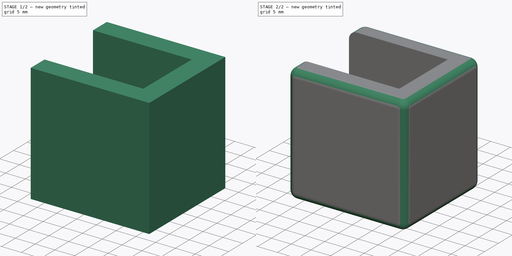
[diagram: build sequence overview — one tinted view per stage of 2, left to right]
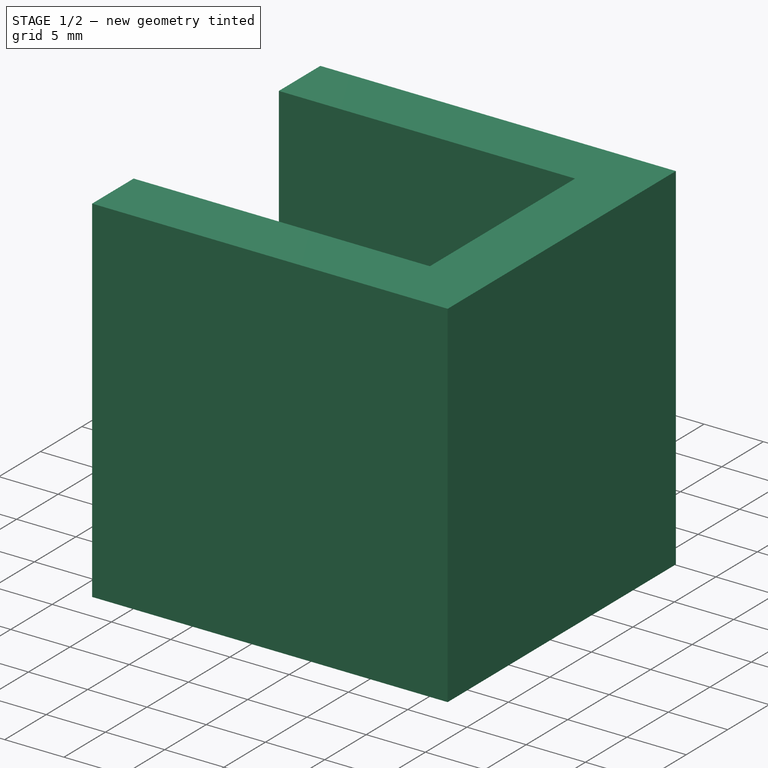
[diagram: stage 1 of 2 — iso view after this stage's code; geometry added in this stage tinted green]
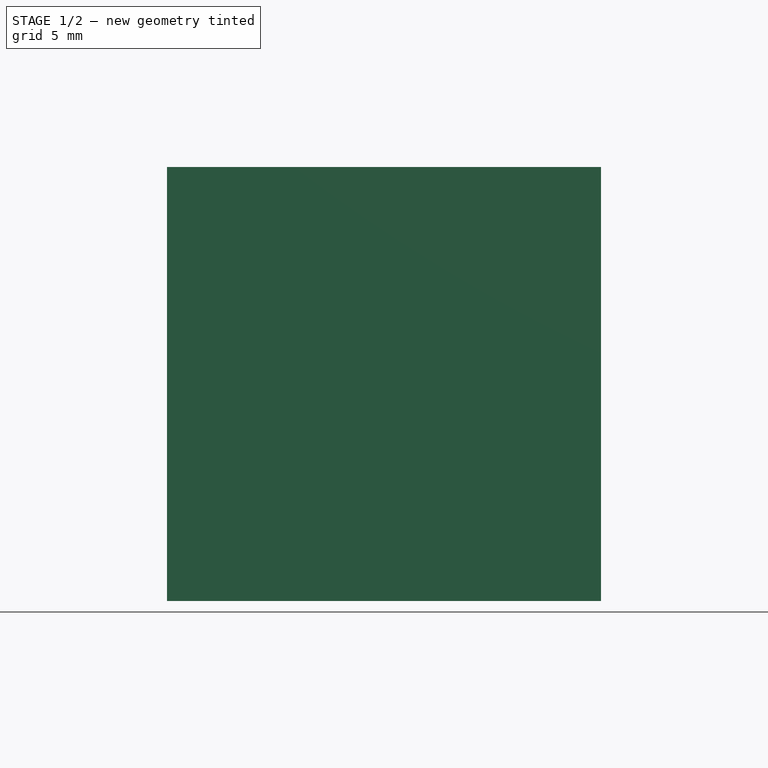
[diagram: stage 1 of 2 — front view after this stage's code; geometry added in this stage tinted green]
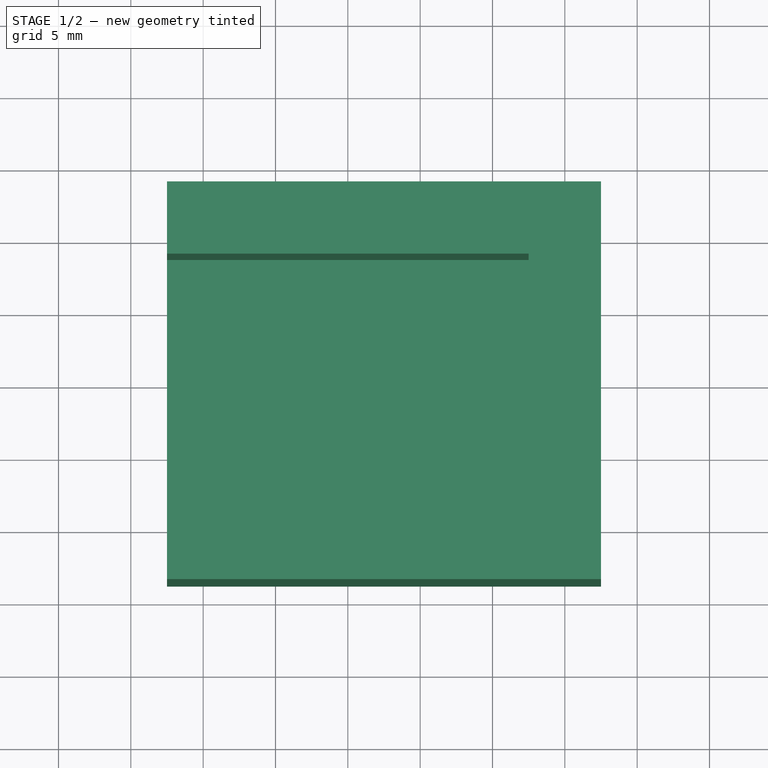
[diagram: stage 1 of 2 — top view after this stage's code; geometry added in this stage tinted green]
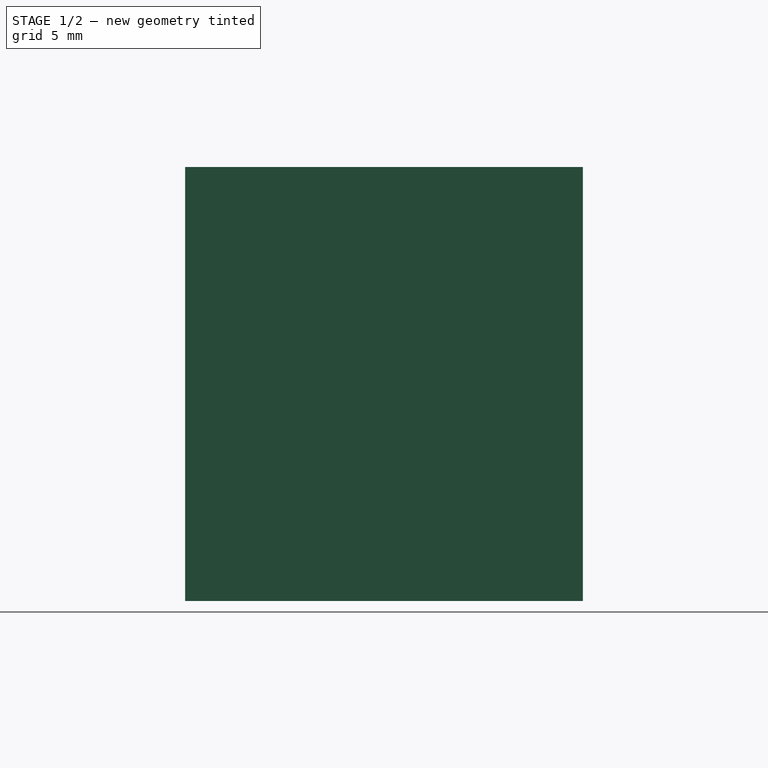
[diagram: stage 1 of 2 — right view after this stage's code; geometry added in this stage tinted green]
FCSTD DOCUMENT  (FreeCAD 1.0R39109 (Git))
Label: i_was_pad_bumper
License: All rights reserved
LicenseURL: https://en.wikipedia.org/wiki/All_rights_reserved
objects: Sketcher::SketchObject×2, PartDesign::Pad×2, PartDesign::Fillet×1, PartDesign::Body×1
note: 14 computed .brp shape members not serialized (recipe doc carries the construction recipe); baked Part::Feature solids carry a one-line shape summary decoded from their .brp

FEATURE [Sketcher::SketchObject] Sketch  label="Sketch_body"
  ArcFitTolerance = 1e-06
  AttachmentSupport = -> [XY_Plane]
  FullyConstrained = true
  MakeInternals = false
  MapMode = 5
  sketch-geometry (10):
    g0: LineSegment [constr] StartX=-12.5 StartY=-8.75 StartZ=0 EndX=12.5 EndY=-8.75 EndZ=0
    g1: LineSegment [constr] StartX=12.5 StartY=-8.75 StartZ=0 EndX=12.5 EndY=8.75 EndZ=0
    g2: LineSegment [constr] StartX=12.5 StartY=8.75 StartZ=0 EndX=-12.5 EndY=8.75 EndZ=0
    g3: LineSegment [constr] StartX=-12.5 StartY=8.75 StartZ=0 EndX=-12.5 EndY=-8.75 EndZ=0
    g4: GeomPoint [constr] X=0 Y=0 Z=0
    g5: LineSegment StartX=-12.5 StartY=-13.75 StartZ=0 EndX=17.5 EndY=-13.75 EndZ=0
    g6: LineSegment StartX=17.5 StartY=-13.75 StartZ=0 EndX=17.5 EndY=13.75 EndZ=0
    g7: LineSegment StartX=17.5 StartY=13.75 StartZ=0 EndX=-12.5 EndY=13.75 EndZ=0
    g8: LineSegment StartX=-12.5 StartY=13.75 StartZ=0 EndX=-12.5 EndY=-13.75 EndZ=0
    g9: LineSegment [constr] StartX=-12.5 StartY=1e-16 StartZ=0 EndX=17.5 EndY=-1e-16 EndZ=0
  constraints (25):
    c: Coincident(g0,g1)
    c: Coincident(g1,g2)
    c: Coincident(g2,g3)
    c: Coincident(g3,g0)
    c: Horizontal(g0)
    c: Horizontal(g2)
    c: Vertical(g1)
    c: Vertical(g3)
    c: Symmetric(g2,g0,g4)
    c: Distance(g1,g3) = 25
    c: Distance(g0,g2) = 17.5
    c: Coincident(g4,g-1)
    c: Coincident(g5,g6)
    c: Coincident(g6,g7)
    c: Coincident(g7,g8)
    c: Coincident(g8,g5)
    c: Horizontal(g5)
    c: Horizontal(g7)
    c: Vertical(g6)
    c: Distance(g6,g8) = 30
    c: Distance(g5,g7) = 27.5
    c: Tangent(g8,g3)
    c: Symmetric(g8,g8,g9)
    c: Symmetric(g6,g6,g9)
    c: PointOnObject(g4,g9)
FEATURE [PartDesign::Pad] Pad  label="body"
  Direction = (0,0,1)
  Length = 5
  Length2 = 10
  Profile = -> Sketch
  ReferenceAxis = -> Sketch [N_Axis]
  Refine = true
  Reversed = true
  Suppressed = false
  Type = 0
FEATURE [Sketcher::SketchObject] Sketch001  label="Sketch_sidewall"
  ArcFitTolerance = 1e-06
  AttachmentSupport = -> [XY_Plane]
  FullyConstrained = true
  MakeInternals = false
  MapMode = 5
  sketch-geometry (13):
    g0: LineSegment [constr] StartX=-12.5 StartY=-8.75 StartZ=0 EndX=12.5 EndY=-8.75 EndZ=0
    g1: LineSegment [constr] StartX=12.5 StartY=-8.75 StartZ=0 EndX=12.5 EndY=8.75 EndZ=0
    g2: LineSegment [constr] StartX=12.5 StartY=8.75 StartZ=0 EndX=-12.5 EndY=8.75 EndZ=0
    g3: LineSegment [constr] StartX=-12.5 StartY=8.75 StartZ=0 EndX=-12.5 EndY=-8.75 EndZ=0
    g4: GeomPoint [constr] X=0 Y=0 Z=0
    g5: LineSegment StartX=-12.5 StartY=8.75 StartZ=0 EndX=12.5 EndY=8.75 EndZ=0
    g6: LineSegment StartX=-12.5 StartY=8.75 StartZ=0 EndX=-12.5 EndY=13.75 EndZ=0
    g7: LineSegment StartX=-12.5 StartY=13.75 StartZ=0 EndX=17.5 EndY=13.75 EndZ=0
    g8: LineSegment StartX=-12.5 StartY=-8.75 StartZ=0 EndX=12.5 EndY=-8.75 EndZ=0
    g9: LineSegment StartX=-12.5 StartY=-8.75 StartZ=0 EndX=-12.5 EndY=-13.75 EndZ=0
    g10: LineSegment StartX=-12.5 StartY=-13.75 StartZ=0 EndX=17.5 EndY=-13.75 EndZ=0
    g11: LineSegment StartX=12.5 StartY=8.75 StartZ=0 EndX=12.5 EndY=-8.75 EndZ=0
    g12: LineSegment StartX=17.5 StartY=13.75 StartZ=0 EndX=17.5 EndY=-13.75 EndZ=0
  constraints (30):
    c: Coincident(g0,g1)
    c: Coincident(g1,g2)
    c: Coincident(g2,g3)
    c: Coincident(g3,g0)
    c: Horizontal(g0)
    c: Horizontal(g2)
    c: Vertical(g1)
    c: Vertical(g3)
    c: Symmetric(g2,g0,g4)
    c: Distance(g1,g3) = 25
    c: Distance(g0,g2) = 17.5
    c: Coincident(g4,g-1)
    c: Coincident(g5,g2)
    c: Coincident(g5,g1)
    c: Distance(g6) = 5
    c: Coincident(g6,g2)
    c: Vertical(g6)
    c: Distance(g7) = 30
    c: Coincident(g7,g6)
    c: Horizontal(g7)
    c: Symmetric(g5,g8,g-1)
    c: Symmetric(g5,g8,g-1)
    c: Symmetric(g6,g9,g-1)
    c: Symmetric(g6,g9,g-1)
    c: Symmetric(g7,g10,g-1)
    c: Symmetric(g7,g10,g-1)
    c: Coincident(g11,g1)
    c: Coincident(g11,g8)
    c: Coincident(g12,g7)
    c: Coincident(g12,g10)
FEATURE [PartDesign::Pad] Pad001  label="sidewall"
  BaseFeature = -> Pad
  Direction = (0,0,1)
  Length = 25
  Length2 = 10
  Profile = -> Sketch001
  ReferenceAxis = -> Sketch001 [N_Axis]
  Refine = true
  Suppressed = false
  Type = 0
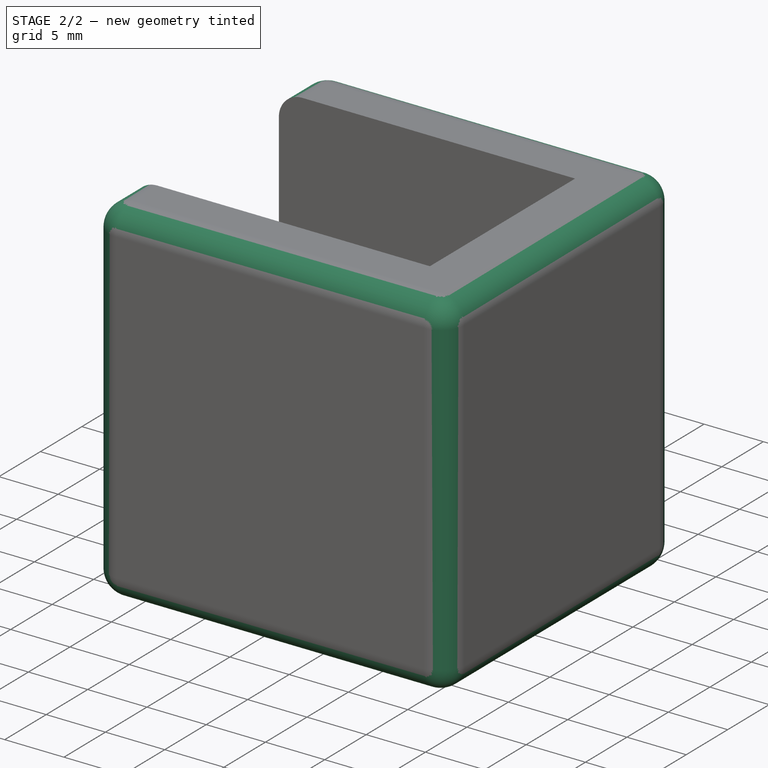
[diagram: stage 2 of 2 — iso view after this stage's code; geometry added in this stage tinted green]
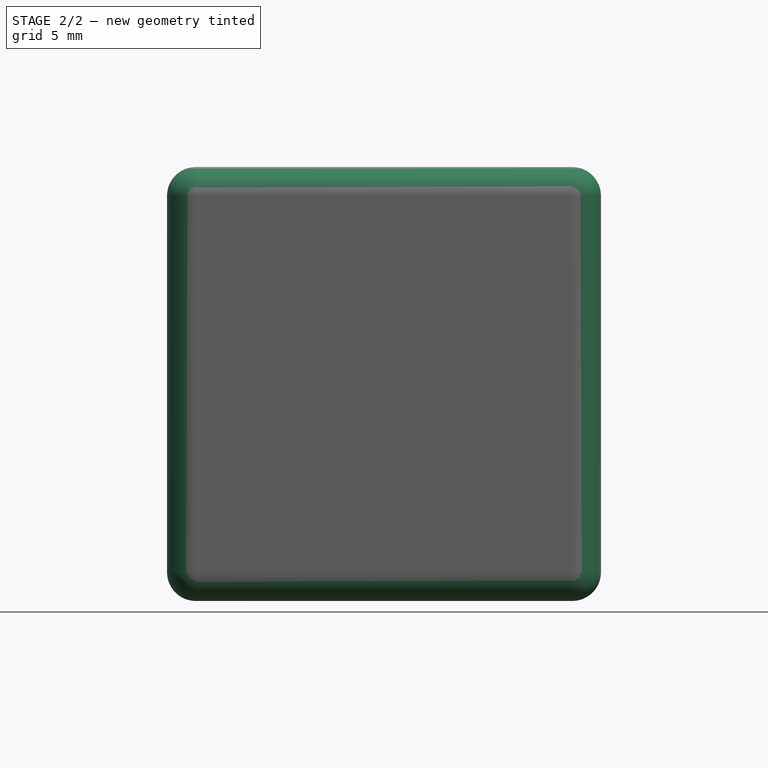
[diagram: stage 2 of 2 — front view after this stage's code; geometry added in this stage tinted green]
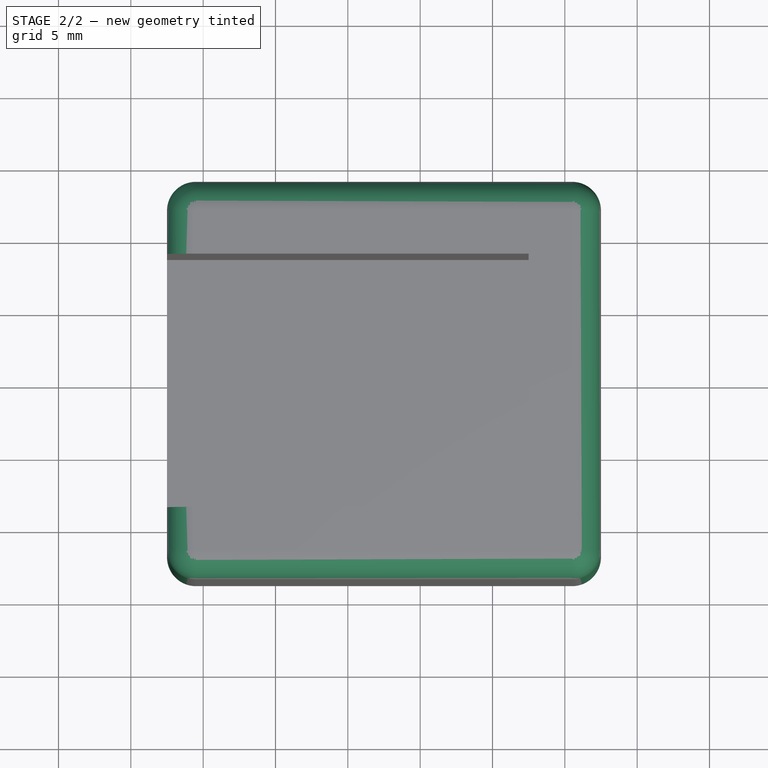
[diagram: stage 2 of 2 — top view after this stage's code; geometry added in this stage tinted green]
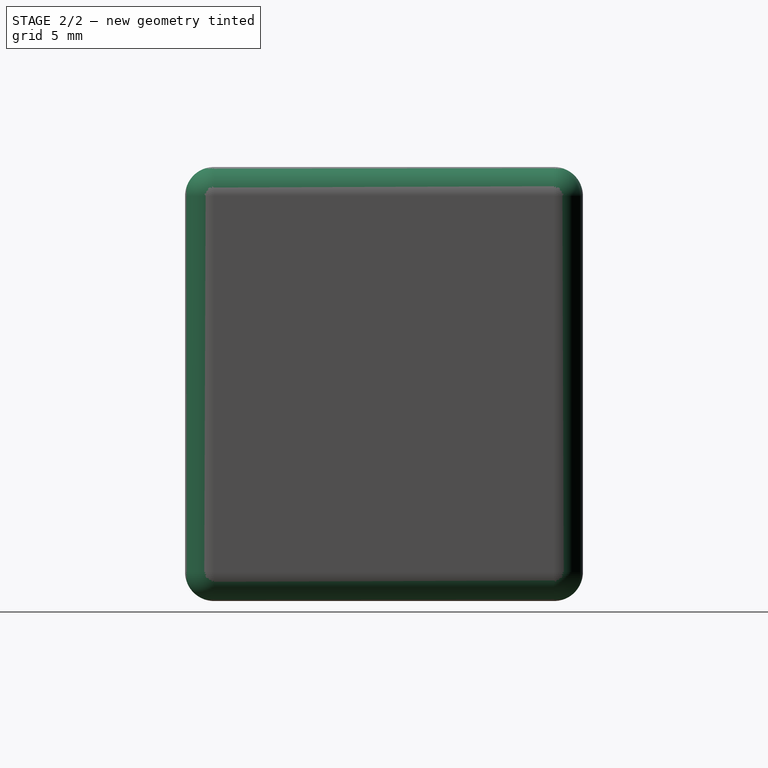
[diagram: stage 2 of 2 — right view after this stage's code; geometry added in this stage tinted green]
FEATURE [PartDesign::Fillet] Fillet  label="Fillet_final"
  Base = -> Pad001 [Edge20,Edge6,Edge15,Edge24,Edge5,Edge2,Edge3,Edge23,Edge4,Edge7,Edge1,Edge19,Edge16]
  BaseFeature = -> Pad001
  Radius = 2
  Refine = true
  SupportTransform = false
  Suppressed = false
  UseAllEdges = false
FEATURE [PartDesign::Body] Body  label="몸통"
  AllowCompound = false
  Group = -> [Sketch,Pad,Sketch001,Pad001,Fillet]
  Origin = -> Origin
  Tip = -> Fillet
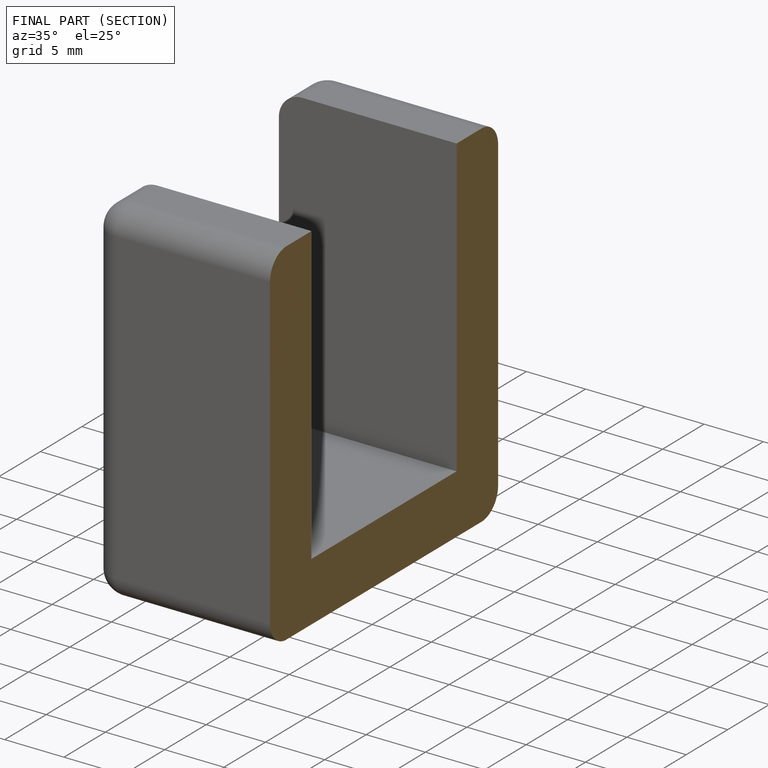
[diagram: finished part — half-section view (interior)]
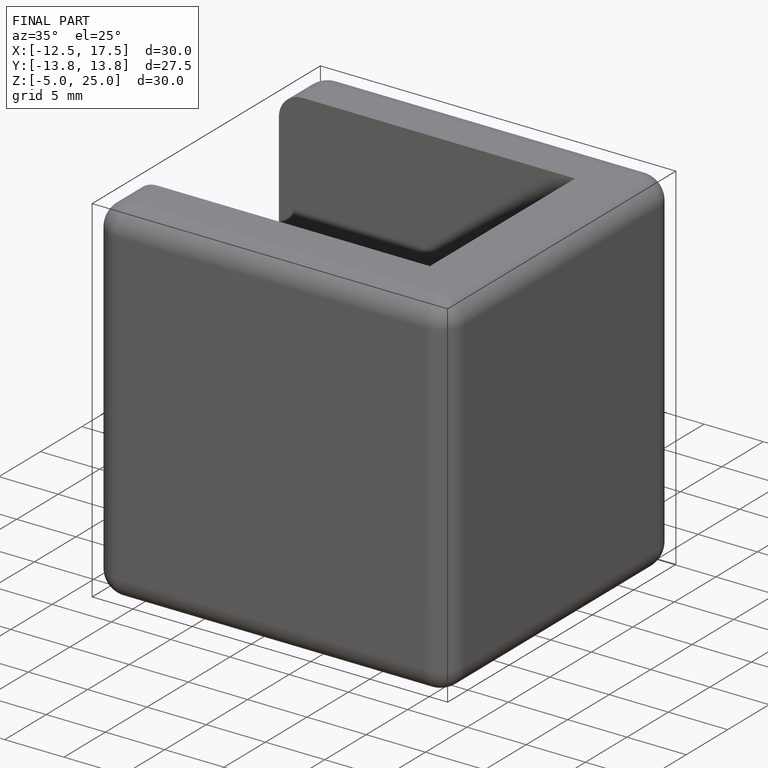
[diagram: finished part — iso view with bounding-box wireframe]
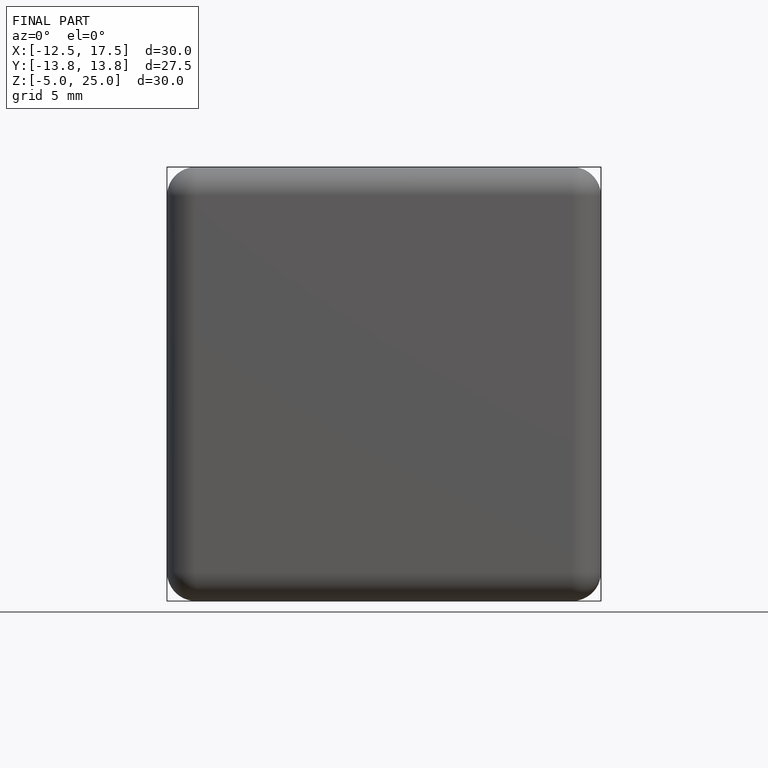
[diagram: finished part — front view with bounding-box wireframe]
